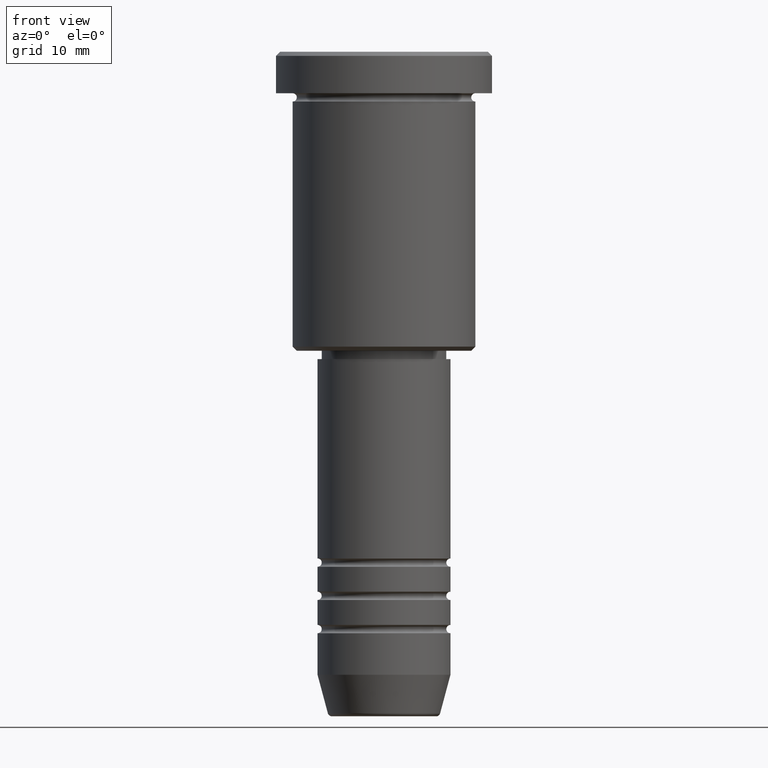
[diagram: clean part render]
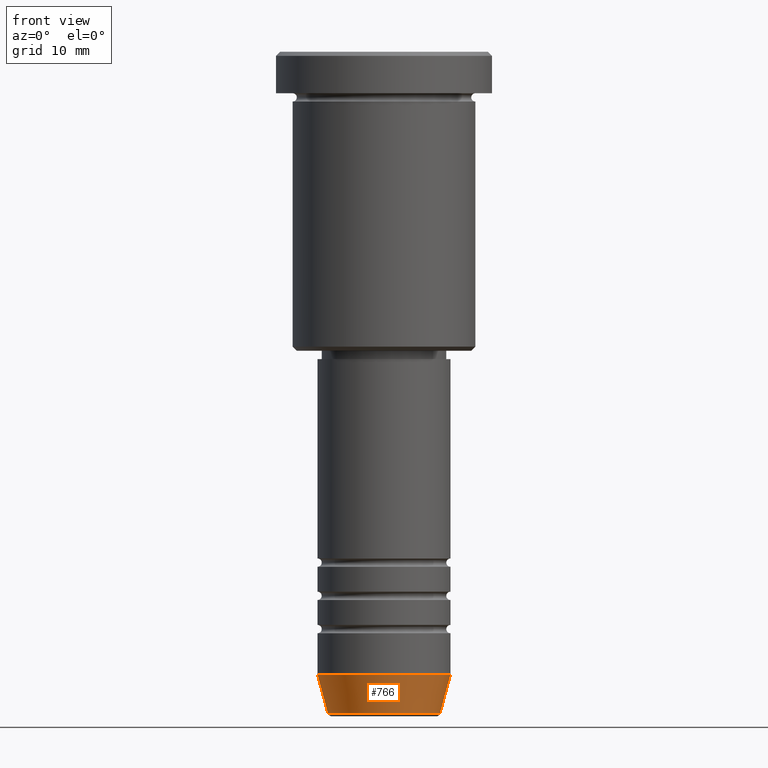
[diagram: same view with one face highlighted and labeled with its STEP entity id]
A machine part, front view. The second image highlights one B-rep face of the part: STEP entity #766.
In plain terms, the highlighted conical surface has half-angle 15 deg.
Its self-contained STEP definition (entity closure, byte-faithful):
#24 = EDGE_CURVE ( 'NONE', #238, #452, #613, .T. ) ;
#66 = CARTESIAN_POINT ( 'NONE',  ( -8.000000000000000000, 9.797174393178825657E-16, -75.00000000000001421 ) ) ;
#72 = LINE ( 'NONE', #982, #1026 ) ;
#147 = EDGE_CURVE ( 'NONE', #452, #225, #430, .T. ) ;
#150 = CIRCLE ( 'NONE', #220, 6.759553456999440435 ) ;
#182 = DIRECTION ( 'NONE',  ( 0.2588190451025214611, 0.000000000000000000, 0.9659258262890679791 ) ) ;
#186 = CARTESIAN_POINT ( 'NONE',  ( 8.000000000000000000, 0.000000000000000000, -75.00000000000001421 ) ) ;
#210 = DIRECTION ( 'NONE',  ( -0.000000000000000000, -0.000000000000000000, 1.000000000000000000 ) ) ;
#220 = AXIS2_PLACEMENT_3D ( 'NONE', #990, #253, #1083 ) ;
#225 = VERTEX_POINT ( 'NONE', #186 ) ;
#238 = VERTEX_POINT ( 'NONE', #559 ) ;
#244 = DIRECTION ( 'NONE',  ( -0.2588190451025214611, 3.169619151431774186E-17, 0.9659258262890679791 ) ) ;
#253 = DIRECTION ( 'NONE',  ( -0.000000000000000000, -0.000000000000000000, 1.000000000000000000 ) ) ;
#324 = CONICAL_SURFACE ( 'NONE', #1027, 8.000000000000000000, 0.2617993877991502405 ) ;
#334 = VECTOR ( 'NONE', #244, 1000.000000000000114 ) ;
#430 = CIRCLE ( 'NONE', #1043, 8.000000000000000000 ) ;
#435 = ORIENTED_EDGE ( 'NONE', *, *, #662, .T. ) ;
#445 = ORIENTED_EDGE ( 'NONE', *, *, #24, .F. ) ;
#452 = VERTEX_POINT ( 'NONE', #1138 ) ;
#559 = CARTESIAN_POINT ( 'NONE',  ( -6.759553456999441323, 9.037619948979308185E-16, -79.62940952255127058 ) ) ;
#578 = CARTESIAN_POINT ( 'NONE',  ( 6.759553456999440435, 0.000000000000000000, -79.62940952255127058 ) ) ;
#613 = LINE ( 'NONE', #66, #334 ) ;
#621 = DIRECTION ( 'NONE',  ( 1.000000000000000000, 0.000000000000000000, 0.000000000000000000 ) ) ;
#639 = EDGE_CURVE ( 'NONE', #238, #893, #150, .T. ) ;
#662 = EDGE_CURVE ( 'NONE', #893, #225, #72, .T. ) ;
#766 = ADVANCED_FACE ( 'NONE', ( #1010 ), #324, .T. ) ;
#833 = CARTESIAN_POINT ( 'NONE',  ( 0.000000000000000000, 0.000000000000000000, -75.00000000000001421 ) ) ;
#844 = DIRECTION ( 'NONE',  ( 1.000000000000000000, 0.000000000000000000, 0.000000000000000000 ) ) ;
#846 = EDGE_LOOP ( 'NONE', ( #445, #1034, #435, #938 ) ) ;
#893 = VERTEX_POINT ( 'NONE', #578 ) ;
#938 = ORIENTED_EDGE ( 'NONE', *, *, #147, .F. ) ;
#982 = CARTESIAN_POINT ( 'NONE',  ( 8.000000000000000000, 0.000000000000000000, -75.00000000000001421 ) ) ;
#990 = CARTESIAN_POINT ( 'NONE',  ( 0.000000000000000000, 0.000000000000000000, -79.62940952255127058 ) ) ;
#1010 = FACE_OUTER_BOUND ( 'NONE', #846, .T. ) ;
#1026 = VECTOR ( 'NONE', #182, 1000.000000000000114 ) ;
#1027 = AXIS2_PLACEMENT_3D ( 'NONE', #833, #210, #844 ) ;
#1034 = ORIENTED_EDGE ( 'NONE', *, *, #639, .T. ) ;
#1043 = AXIS2_PLACEMENT_3D ( 'NONE', #1164, #1070, #621 ) ;
#1070 = DIRECTION ( 'NONE',  ( -0.000000000000000000, -0.000000000000000000, 1.000000000000000000 ) ) ;
#1083 = DIRECTION ( 'NONE',  ( 1.000000000000000000, 0.000000000000000000, 0.000000000000000000 ) ) ;
#1138 = CARTESIAN_POINT ( 'NONE',  ( -8.000000000000000000, 9.797174393178825657E-16, -75.00000000000001421 ) ) ;
#1164 = CARTESIAN_POINT ( 'NONE',  ( 0.000000000000000000, 0.000000000000000000, -75.00000000000001421 ) ) ;